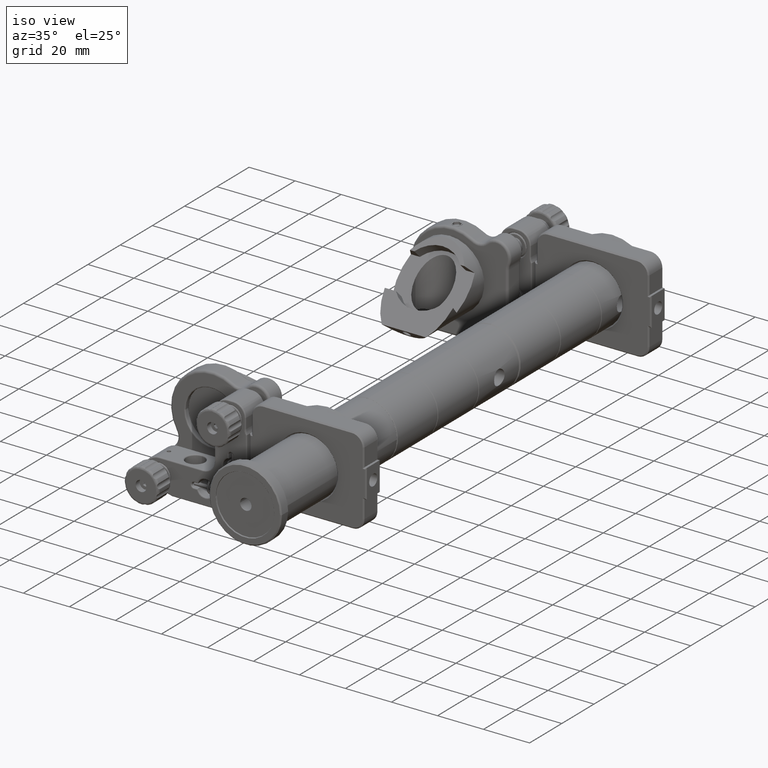
[diagram: clean part render]
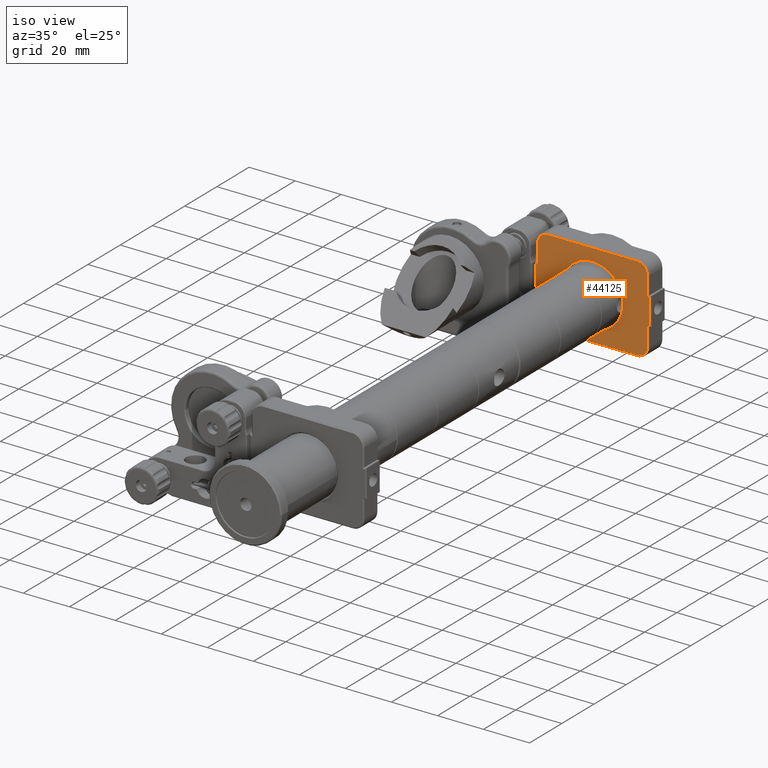
[diagram: same view with one face highlighted and labeled with its STEP entity id]
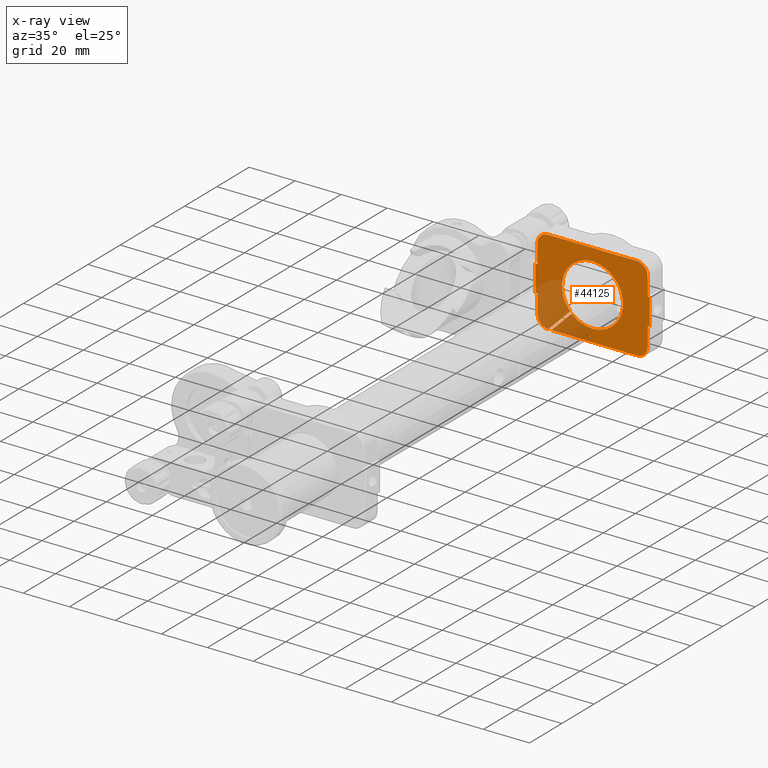
[diagram: x-ray of the same camera — body ghosted, the highlighted face saturated]
A machine part, iso view. The second image highlights one B-rep face of the part: STEP entity #44125.
The next image is the same camera in x-ray: the body ghosted, the highlighted face saturated — about 24% of this face is hidden behind the body in this view.
In plain terms, the highlighted planar face has unit normal (0, 1, 0).
Its self-contained STEP definition (entity closure, byte-faithful):
#276 = DIRECTION ( 'NONE',  ( -0.7071067811865462400, 0.0000000000000000000, -0.7071067811865489100 ) ) ;
#297 = EDGE_CURVE ( 'NONE', #10905, #27088, #1771, .T. ) ;
#590 = DIRECTION ( 'NONE',  ( 0.0000000000000000000, 0.0000000000000000000, -1.000000000000000000 ) ) ;
#597 = DIRECTION ( 'NONE',  ( 1.000000000000000000, 0.0000000000000000000, -2.011592858998334500E-016 ) ) ;
#712 = CARTESIAN_POINT ( 'NONE',  ( -23.89999999999997000, 7.585297475245978300, 5.750000000000028400 ) ) ;
#1030 = CARTESIAN_POINT ( 'NONE',  ( 23.90000000000002000, 7.585297475245978300, 14.05000000000004200 ) ) ;
#1071 = ORIENTED_EDGE ( 'NONE', *, *, #27191, .T. ) ;
#1187 = AXIS2_PLACEMENT_3D ( 'NONE', #17098, #26282, #29919 ) ;
#1237 = DIRECTION ( 'NONE',  ( -6.113343449698786500E-016, 0.0000000000000000000, 1.000000000000000000 ) ) ;
#1769 = CIRCLE ( 'NONE', #38897, 4.500000000000002700 ) ;
#1771 = LINE ( 'NONE', #23476, #34076 ) ;
#1781 = EDGE_CURVE ( 'NONE', #55850, #51108, #34661, .T. ) ;
#1987 = DIRECTION ( 'NONE',  ( 0.0000000000000000000, 0.0000000000000000000, -1.000000000000000000 ) ) ;
#2100 = DIRECTION ( 'NONE',  ( -1.000000000000000000, 0.0000000000000000000, -1.665334536937734800E-016 ) ) ;
#2581 = CARTESIAN_POINT ( 'NONE',  ( 23.90000000000002300, 7.585297475245978300, 14.05000000000002400 ) ) ;
#4302 = CARTESIAN_POINT ( 'NONE',  ( 19.40000000000003100, 7.585297475245978300, -14.04999999999994900 ) ) ;
#4521 = CARTESIAN_POINT ( 'NONE',  ( -19.25476239702476600, 7.585297475245978300, -18.54765561583828800 ) ) ;
#4844 = DIRECTION ( 'NONE',  ( -1.000000000000000000, 0.0000000000000000000, -1.665334536937734800E-016 ) ) ;
#5458 = VERTEX_POINT ( 'NONE', #5827 ) ;
#5515 = CARTESIAN_POINT ( 'NONE',  ( -24.89999999999997000, 7.585297475245978300, 5.750000000000028400 ) ) ;
#5827 = CARTESIAN_POINT ( 'NONE',  ( -24.89999999999997000, 7.585297475245978300, -5.749999999999969800 ) ) ;
#6149 = DIRECTION ( 'NONE',  ( 1.000000000000000000, 0.0000000000000000000, 1.665334536937734800E-016 ) ) ;
#6404 = ORIENTED_EDGE ( 'NONE', *, *, #52274, .T. ) ;
#6505 = EDGE_CURVE ( 'NONE', #29937, #15041, #12740, .T. ) ;
#7036 = VECTOR ( 'NONE', #54446, 1000.000000000000000 ) ;
#7219 = LINE ( 'NONE', #34725, #30205 ) ;
#7487 = AXIS2_PLACEMENT_3D ( 'NONE', #10195, #37696, #24057 ) ;
#7716 = LINE ( 'NONE', #22369, #7036 ) ;
#8092 = AXIS2_PLACEMENT_3D ( 'NONE', #16131, #33760, #33956 ) ;
#8654 = EDGE_CURVE ( 'NONE', #27088, #27208, #36953, .T. ) ;
#8794 = ORIENTED_EDGE ( 'NONE', *, *, #43668, .T. ) ;
#9529 = VERTEX_POINT ( 'NONE', #15183 ) ;
#9913 = CIRCLE ( 'NONE', #1187, 13.24999999999998400 ) ;
#10072 = CARTESIAN_POINT ( 'NONE',  ( 24.90000000000002000, 7.585297475245978300, 14.05000000000002200 ) ) ;
#10195 = CARTESIAN_POINT ( 'NONE',  ( 2.775557561562891400E-014, 7.585297475245978300, 3.469446951953614200E-014 ) ) ;
#10197 = CARTESIAN_POINT ( 'NONE',  ( -19.39999999999997000, 7.585297475245978300, -5.749999999999968900 ) ) ;
#10732 = CARTESIAN_POINT ( 'NONE',  ( 23.90000000000002700, 7.585297475245978300, 5.750000000000037300 ) ) ;
#10905 = VERTEX_POINT ( 'NONE', #12339 ) ;
#11337 = CARTESIAN_POINT ( 'NONE',  ( 19.40000000000002000, 7.585297475245978300, 18.55000000000002900 ) ) ;
#11496 = ORIENTED_EDGE ( 'NONE', *, *, #57809, .T. ) ;
#11877 = CARTESIAN_POINT ( 'NONE',  ( 2.554900735418641800E-014, 7.585297475245978300, 13.25000000000001800 ) ) ;
#12082 = CARTESIAN_POINT ( 'NONE',  ( -23.89999999999997700, 7.585297475245978300, 14.05000000000001500 ) ) ;
#12339 = CARTESIAN_POINT ( 'NONE',  ( -17.84289321881334400, 7.585297475245978300, -18.54999999999995800 ) ) ;
#12475 = EDGE_CURVE ( 'NONE', #21131, #5458, #7219, .T. ) ;
#12614 = CARTESIAN_POINT ( 'NONE',  ( -18.34289321881334100, 7.585297475245978300, -19.04999999999995800 ) ) ;
#12740 = LINE ( 'NONE', #14545, #42889 ) ;
#12934 = LINE ( 'NONE', #16190, #29420 ) ;
#14298 = CARTESIAN_POINT ( 'NONE',  ( 19.40000000000003100, 7.585297475245978300, -18.54999999999995500 ) ) ;
#14357 = ORIENTED_EDGE ( 'NONE', *, *, #24722, .T. ) ;
#14545 = CARTESIAN_POINT ( 'NONE',  ( -9.362229763956850800, 7.585297475245978300, -8.655122982770334900 ) ) ;
#14962 = LINE ( 'NONE', #10072, #42248 ) ;
#15041 = VERTEX_POINT ( 'NONE', #4521 ) ;
#15183 = CARTESIAN_POINT ( 'NONE',  ( 23.90000000000002300, 7.585297475245978300, -5.749999999999960900 ) ) ;
#16131 = CARTESIAN_POINT ( 'NONE',  ( -19.39999999999997400, 7.585297475245978300, 14.05000000000001500 ) ) ;
#16190 = CARTESIAN_POINT ( 'NONE',  ( 23.90000000000002000, 7.585297475245978300, 14.05000000000002200 ) ) ;
#16308 = DIRECTION ( 'NONE',  ( 1.665334536937734800E-016, 0.0000000000000000000, -1.000000000000000000 ) ) ;
#16470 = CARTESIAN_POINT ( 'NONE',  ( 24.90000000000002300, 7.585297475245978300, -5.749999999999960900 ) ) ;
#16552 = ORIENTED_EDGE ( 'NONE', *, *, #8654, .T. ) ;
#16807 = VECTOR ( 'NONE', #58572, 1000.000000000000100 ) ;
#17098 = CARTESIAN_POINT ( 'NONE',  ( 2.775557561562891400E-014, 7.585297475245978300, 3.469446951953614200E-014 ) ) ;
#17851 = LINE ( 'NONE', #10197, #33620 ) ;
#18025 = VERTEX_POINT ( 'NONE', #35882 ) ;
#20362 = EDGE_CURVE ( 'NONE', #38435, #18025, #52874, .T. ) ;
#20883 = VERTEX_POINT ( 'NONE', #30842 ) ;
#21131 = VERTEX_POINT ( 'NONE', #5515 ) ;
#21201 = DIRECTION ( 'NONE',  ( -1.000000000000000000, 0.0000000000000000000, -1.665334536937734800E-016 ) ) ;
#21252 = EDGE_CURVE ( 'NONE', #52215, #48860, #24773, .T. ) ;
#22050 = EDGE_CURVE ( 'NONE', #10905, #18025, #41199, .T. ) ;
#22369 = CARTESIAN_POINT ( 'NONE',  ( -19.39999999999997000, 7.585297475245978300, -5.749999999999968900 ) ) ;
#22415 = EDGE_CURVE ( 'NONE', #27208, #9529, #12934, .T. ) ;
#23037 = ORIENTED_EDGE ( 'NONE', *, *, #50301, .T. ) ;
#23081 = CARTESIAN_POINT ( 'NONE',  ( -19.39999999999997000, 7.585297475245978300, -14.04999999999995600 ) ) ;
#23096 = VERTEX_POINT ( 'NONE', #11877 ) ;
#23476 = CARTESIAN_POINT ( 'NONE',  ( -19.39999999999997700, 7.585297475245978300, -18.54999999999995800 ) ) ;
#24057 = DIRECTION ( 'NONE',  ( 1.665334536937734800E-016, 0.0000000000000000000, -1.000000000000000000 ) ) ;
#24455 = VECTOR ( 'NONE', #1237, 1000.000000000000000 ) ;
#24722 = EDGE_CURVE ( 'NONE', #29937, #23096, #9913, .T. ) ;
#24773 = LINE ( 'NONE', #53084, #49865 ) ;
#24777 = CARTESIAN_POINT ( 'NONE',  ( -23.89999999999997000, 7.585297475245978300, 14.05000000000001700 ) ) ;
#24948 = CARTESIAN_POINT ( 'NONE',  ( -23.89999999999997000, 7.585297475245978300, 14.05000000000001700 ) ) ;
#25225 = ORIENTED_EDGE ( 'NONE', *, *, #21252, .T. ) ;
#25464 = CARTESIAN_POINT ( 'NONE',  ( 23.90000000000002700, 7.585297475245978300, -14.04999999999995100 ) ) ;
#25666 = CIRCLE ( 'NONE', #34724, 4.500000000000005300 ) ;
#26282 = DIRECTION ( 'NONE',  ( 0.0000000000000000000, 1.000000000000000000, 0.0000000000000000000 ) ) ;
#26327 = VECTOR ( 'NONE', #44204, 1000.000000000000000 ) ;
#26572 = VERTEX_POINT ( 'NONE', #30352 ) ;
#26604 = DIRECTION ( 'NONE',  ( 2.312964634635739900E-015, 0.0000000000000000000, -1.000000000000000000 ) ) ;
#27066 = LINE ( 'NONE', #12082, #26327 ) ;
#27088 = VERTEX_POINT ( 'NONE', #14298 ) ;
#27191 = EDGE_CURVE ( 'NONE', #47239, #52215, #1769, .T. ) ;
#27208 = VERTEX_POINT ( 'NONE', #25464 ) ;
#27886 = DIRECTION ( 'NONE',  ( 1.665334536937734800E-016, 0.0000000000000000000, -1.000000000000000000 ) ) ;
#28570 = CARTESIAN_POINT ( 'NONE',  ( 2.833948686820116800E-014, 7.585297475245978300, -13.24999999999994700 ) ) ;
#29420 = VECTOR ( 'NONE', #52089, 1000.000000000000000 ) ;
#29488 = CARTESIAN_POINT ( 'NONE',  ( 19.40000000000002000, 7.585297475245978300, 14.05000000000002200 ) ) ;
#29919 = DIRECTION ( 'NONE',  ( 1.665334536937734800E-016, 0.0000000000000000000, -1.000000000000000000 ) ) ;
#29937 = VERTEX_POINT ( 'NONE', #44224 ) ;
#29987 = ORIENTED_EDGE ( 'NONE', *, *, #20362, .T. ) ;
#30205 = VECTOR ( 'NONE', #16308, 1000.000000000000000 ) ;
#30352 = CARTESIAN_POINT ( 'NONE',  ( -19.39999999999997000, 7.585297475245978300, -18.54999999999996200 ) ) ;
#30812 = ORIENTED_EDGE ( 'NONE', *, *, #58139, .T. ) ;
#30842 = CARTESIAN_POINT ( 'NONE',  ( -23.89999999999997400, 7.585297475245978300, -5.749999999999969800 ) ) ;
#30965 = EDGE_CURVE ( 'NONE', #20883, #42062, #27066, .T. ) ;
#31218 = CARTESIAN_POINT ( 'NONE',  ( -19.39999999999997000, 7.585297475245978300, -14.04999999999995600 ) ) ;
#31622 = CARTESIAN_POINT ( 'NONE',  ( 2.775557561562891400E-014, 7.585297475245978300, 3.469446951953614200E-014 ) ) ;
#31825 = DIRECTION ( 'NONE',  ( 1.665334536937734800E-016, 0.0000000000000000000, -1.000000000000000000 ) ) ;
#33620 = VECTOR ( 'NONE', #6149, 1000.000000000000000 ) ;
#33760 = DIRECTION ( 'NONE',  ( -0.0000000000000000000, -1.000000000000000000, -0.0000000000000000000 ) ) ;
#33811 = DIRECTION ( 'NONE',  ( -2.782674375823316900E-016, 0.0000000000000000000, -1.000000000000000000 ) ) ;
#33896 = DIRECTION ( 'NONE',  ( -0.0000000000000000000, -1.000000000000000000, -0.0000000000000000000 ) ) ;
#33956 = DIRECTION ( 'NONE',  ( -7.709882115452474200E-016, 0.0000000000000000000, -1.000000000000000000 ) ) ;
#34076 = VECTOR ( 'NONE', #597, 1000.000000000000000 ) ;
#34607 = ORIENTED_EDGE ( 'NONE', *, *, #22415, .T. ) ;
#34661 = LINE ( 'NONE', #55605, #56211 ) ;
#34673 = LINE ( 'NONE', #48637, #57666 ) ;
#34724 = AXIS2_PLACEMENT_3D ( 'NONE', #31218, #54306, #26604 ) ;
#34725 = CARTESIAN_POINT ( 'NONE',  ( -24.89999999999997400, 7.585297475245978300, 14.05000000000001500 ) ) ;
#35785 = AXIS2_PLACEMENT_3D ( 'NONE', #42149, #46366, #27886 ) ;
#35882 = CARTESIAN_POINT ( 'NONE',  ( -9.008938264943672900, 7.585297475245978300, -9.716045046130251000 ) ) ;
#36132 = EDGE_CURVE ( 'NONE', #59375, #21131, #34673, .T. ) ;
#36396 = DIRECTION ( 'NONE',  ( 0.0000000000000000000, 0.0000000000000000000, -1.000000000000000000 ) ) ;
#36479 = ORIENTED_EDGE ( 'NONE', *, *, #30965, .T. ) ;
#36499 = CARTESIAN_POINT ( 'NONE',  ( -23.89999999999997400, 7.585297475245978300, -14.04999999999995800 ) ) ;
#36683 = ORIENTED_EDGE ( 'NONE', *, *, #12475, .T. ) ;
#36953 = CIRCLE ( 'NONE', #42228, 4.500000000000005300 ) ;
#37085 = AXIS2_PLACEMENT_3D ( 'NONE', #23081, #50951, #590 ) ;
#37696 = DIRECTION ( 'NONE',  ( 0.0000000000000000000, 1.000000000000000000, 0.0000000000000000000 ) ) ;
#38435 = VERTEX_POINT ( 'NONE', #28570 ) ;
#38519 = VERTEX_POINT ( 'NONE', #24948 ) ;
#38788 = ORIENTED_EDGE ( 'NONE', *, *, #55502, .T. ) ;
#38897 = AXIS2_PLACEMENT_3D ( 'NONE', #29488, #33896, #1987 ) ;
#39347 = ORIENTED_EDGE ( 'NONE', *, *, #50826, .T. ) ;
#39479 = VECTOR ( 'NONE', #33811, 1000.000000000000000 ) ;
#39731 = ORIENTED_EDGE ( 'NONE', *, *, #22050, .F. ) ;
#40833 = DIRECTION ( 'NONE',  ( -0.0000000000000000000, -1.000000000000000000, -0.0000000000000000000 ) ) ;
#40955 = PLANE ( 'NONE',  #35785 ) ;
#41199 = LINE ( 'NONE', #12614, #16807 ) ;
#42062 = VERTEX_POINT ( 'NONE', #36499 ) ;
#42149 = CARTESIAN_POINT ( 'NONE',  ( -19.39999999999997400, 7.585297475245978300, 14.05000000000001500 ) ) ;
#42228 = AXIS2_PLACEMENT_3D ( 'NONE', #4302, #40833, #36396 ) ;
#42248 = VECTOR ( 'NONE', #50429, 1000.000000000000000 ) ;
#42357 = ORIENTED_EDGE ( 'NONE', *, *, #1781, .T. ) ;
#42493 = CIRCLE ( 'NONE', #52477, 13.24999999999998400 ) ;
#42582 = CARTESIAN_POINT ( 'NONE',  ( 24.90000000000002300, 7.585297475245978300, 5.750000000000037300 ) ) ;
#42889 = VECTOR ( 'NONE', #276, 1000.000000000000000 ) ;
#43585 = EDGE_CURVE ( 'NONE', #9529, #47320, #7716, .T. ) ;
#43668 = EDGE_CURVE ( 'NONE', #47320, #55850, #14962, .T. ) ;
#43881 = LINE ( 'NONE', #1030, #24455 ) ;
#44006 = CIRCLE ( 'NONE', #37085, 4.500000000000005300 ) ;
#44125 = ADVANCED_FACE ( 'NONE', ( #50810 ), #40955, .F. ) ;
#44204 = DIRECTION ( 'NONE',  ( 1.665334536937734800E-016, 0.0000000000000000000, -1.000000000000000000 ) ) ;
#44224 = CARTESIAN_POINT ( 'NONE',  ( -9.716045046130217200, 7.585297475245978300, -9.008938264943701300 ) ) ;
#44907 = CIRCLE ( 'NONE', #8092, 4.500000000000000900 ) ;
#46306 = EDGE_LOOP ( 'NONE', ( #39731, #48315, #16552, #34607, #51127, #8794, #42357, #47626, #1071, #25225, #38788, #6404, #54370, #36683, #11496, #36479, #30812, #23037, #51032, #14357, #39347, #29987 ) ) ;
#46366 = DIRECTION ( 'NONE',  ( 0.0000000000000000000, 1.000000000000000000, 0.0000000000000000000 ) ) ;
#47239 = VERTEX_POINT ( 'NONE', #2581 ) ;
#47320 = VERTEX_POINT ( 'NONE', #16470 ) ;
#47626 = ORIENTED_EDGE ( 'NONE', *, *, #51548, .T. ) ;
#48315 = ORIENTED_EDGE ( 'NONE', *, *, #297, .T. ) ;
#48637 = CARTESIAN_POINT ( 'NONE',  ( -19.39999999999997000, 7.585297475245978300, 5.750000000000029300 ) ) ;
#48860 = VERTEX_POINT ( 'NONE', #55086 ) ;
#49865 = VECTOR ( 'NONE', #21201, 1000.000000000000000 ) ;
#50301 = EDGE_CURVE ( 'NONE', #26572, #15041, #44006, .T. ) ;
#50429 = DIRECTION ( 'NONE',  ( -1.665334536937734800E-016, 0.0000000000000000000, 1.000000000000000000 ) ) ;
#50810 = FACE_OUTER_BOUND ( 'NONE', #46306, .T. ) ;
#50826 = EDGE_CURVE ( 'NONE', #23096, #38435, #42493, .T. ) ;
#50951 = DIRECTION ( 'NONE',  ( -0.0000000000000000000, -1.000000000000000000, -0.0000000000000000000 ) ) ;
#51032 = ORIENTED_EDGE ( 'NONE', *, *, #6505, .F. ) ;
#51108 = VERTEX_POINT ( 'NONE', #10732 ) ;
#51127 = ORIENTED_EDGE ( 'NONE', *, *, #43585, .T. ) ;
#51548 = EDGE_CURVE ( 'NONE', #51108, #47239, #43881, .T. ) ;
#52089 = DIRECTION ( 'NONE',  ( -1.665334536937734800E-016, 0.0000000000000000000, 1.000000000000000000 ) ) ;
#52215 = VERTEX_POINT ( 'NONE', #11337 ) ;
#52274 = EDGE_CURVE ( 'NONE', #38519, #59375, #58158, .T. ) ;
#52477 = AXIS2_PLACEMENT_3D ( 'NONE', #31622, #54717, #31825 ) ;
#52874 = CIRCLE ( 'NONE', #7487, 13.24999999999998400 ) ;
#53084 = CARTESIAN_POINT ( 'NONE',  ( -19.39999999999997400, 7.585297475245978300, 18.55000000000002200 ) ) ;
#54306 = DIRECTION ( 'NONE',  ( -0.0000000000000000000, -1.000000000000000000, -0.0000000000000000000 ) ) ;
#54370 = ORIENTED_EDGE ( 'NONE', *, *, #36132, .T. ) ;
#54446 = DIRECTION ( 'NONE',  ( 1.000000000000000000, 0.0000000000000000000, 1.665334536937734800E-016 ) ) ;
#54717 = DIRECTION ( 'NONE',  ( 0.0000000000000000000, 1.000000000000000000, 0.0000000000000000000 ) ) ;
#55086 = CARTESIAN_POINT ( 'NONE',  ( -19.39999999999997400, 7.585297475245978300, 18.55000000000001800 ) ) ;
#55502 = EDGE_CURVE ( 'NONE', #48860, #38519, #44907, .T. ) ;
#55605 = CARTESIAN_POINT ( 'NONE',  ( -19.39999999999997000, 7.585297475245978300, 5.750000000000029300 ) ) ;
#55850 = VERTEX_POINT ( 'NONE', #42582 ) ;
#56211 = VECTOR ( 'NONE', #4844, 1000.000000000000000 ) ;
#57666 = VECTOR ( 'NONE', #2100, 1000.000000000000000 ) ;
#57809 = EDGE_CURVE ( 'NONE', #5458, #20883, #17851, .T. ) ;
#58139 = EDGE_CURVE ( 'NONE', #42062, #26572, #25666, .T. ) ;
#58158 = LINE ( 'NONE', #24777, #39479 ) ;
#58572 = DIRECTION ( 'NONE',  ( 0.7071067811865460200, 0.0000000000000000000, 0.7071067811865489100 ) ) ;
#59375 = VERTEX_POINT ( 'NONE', #712 ) ;